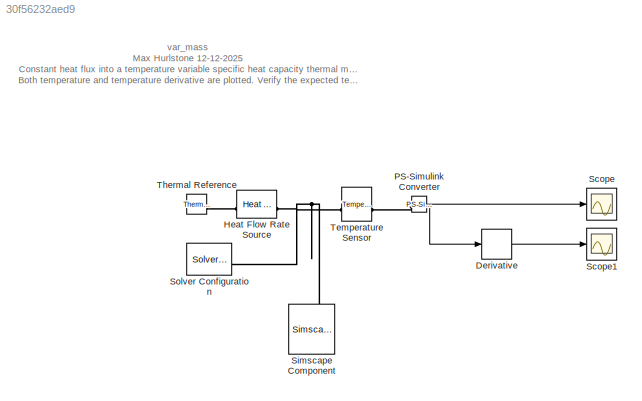
MODEL slx_30f56232aed9
KIND model
CONFIG AbsTol = auto
CONFIG EnableMultiTasking = off
CONFIG FixedStep = auto
CONFIG MaxStep = auto
CONFIG MinStep = auto
CONFIG RelTol = 1e-5
CONFIG SampleTimeConstraint = Unconstrained
CONFIG SolverName = VariableStepAuto
CONFIG StartTime = 0.0
CONFIG StopTime = 100
BLOCK [Derivative] Derivative
BLOCK [Reference] Heat Flow Rate Source  REF=fl_lib/Thermal/Thermal Sources/Heat Flow Rate
Source
  SourceBlock = fl_lib/Thermal/Thermal Sources/Heat Flow Rate\nSource
  SourceType = Heat Flow Rate\nSource
BLOCK [Reference] PS-Simulink Converter  REF=nesl_utility/PS-Simulink
Converter
  SourceBlock = nesl_utility/PS-Simulink\nConverter
  SourceType = PS-Simulink\nConverter
BLOCK [Scope] Scope
  ActiveDisplayYMaximum = 327.21620539047041
  ActiveDisplayYMinimum = 296.97597717883662
  Floating = off
  GraphicalSettings = {"Style":{"BackgroundColor":[0.12941176470588237,0.12941176470588237,0.12941176470588237],"AxesColor":[0.07058823529411765,0.07058823529411765,0.07058823529411765],"LabelsColor":[0.8509803921568627,0.8509803921568627,0.8509803921568627],"PreserveColors":false,"Visible":[true],"LineStyle":["-"],"LineWidth":[1.5],"BarWidth":[0.9],"LineColor":["auto"],"LineFaceAlpha":[1],"LineEdgeAlpha":[1],"Marker":...<+2057ch>
  MultipleDisplayCache = [{"MaxYLimMag":327.21620539047041,"MaxYLimReal":327.21620539047041,"MinYLimMag":296.97597717883662,"MinYLimReal":296.97597717883662,"PlotAsMagnitudePhase":false,"ShowGrid":true,"ShowLegend":false,"Title":"%<SignalLabel>","YLabel":""}]
  NumInputPorts = 1
  ScopeFrameLocation = window
  WasSavedAsWebScope = on
  WindowPosition = [2029.000000,505.000000,560.000000,420.000000,]
BLOCK [Scope] Scope1
  ActiveDisplayYMaximum = 0.27282411786053729
  ActiveDisplayYMinimum = -0.030313790873393025
  DataLoggingVariableName = ScopeData1
  Floating = off
  GraphicalSettings = {"Style":{"BackgroundColor":[0.12941176470588237,0.12941176470588237,0.12941176470588237],"AxesColor":[0.07058823529411765,0.07058823529411765,0.07058823529411765],"LabelsColor":[0.8509803921568627,0.8509803921568627,0.8509803921568627],"PreserveColors":false,"Visible":[true],"LineStyle":["-"],"LineWidth":[1.5],"BarWidth":[0.9],"LineColor":["auto"],"LineFaceAlpha":[1],"LineEdgeAlpha":[1],"Marker":...<+2311ch>
  MultipleDisplayCache = [{"MaxYLimMag":0.27282411786053729,"MaxYLimReal":0.27282411786053729,"MinYLimMag":0,"MinYLimReal":-0.030313790873393025,"PlotAsMagnitudePhase":false,"ShowGrid":true,"ShowLegend":false,"Title":"%<SignalLabel>","YLabel":""}]
  NumInputPorts = 1
  ScopeFrameLocation = window
  WasSavedAsWebScope = on
  WindowPosition = [1370.000000,454.000000,560.000000,420.000000,]
BLOCK [SimscapeComponentBlock] Simscape Component
  ClassName = var_mass
  ComponentPath = DLS_Simscape.Thermal.var_mass
  ComponentVariantNames = ["var_mass"]
  ComponentVariants = ["DLS_Simscape.Thermal.var_mass"]
  CopyFcn = simscape.sscblock.internal.componentBlockCallback(gcbh,'COPY')
  InternalSimscapePortConfiguration = {"Bottom":[],"Left":[{"id":"M","label":"","type":"foundation.thermal.thermal"}],"Right":[],"Top":[]}
  MaskType = Variable Cp Thermal Mass
  NameLocation = left
  PreCopyFcn = simscape.sscblock.internal.componentBlockCallback(gcbh,'PRECOPY')
  PreDeleteFcn = simscape.sscblock.internal.componentBlockCallback(gcbh,'PREDELETE')
  Q = 1000
  Q_nominal_specify = off
  Q_nominal_unit = W
  Q_nominal_value = 1000
  Q_priority = None
  Q_specify = off
  Q_unit = W
  SchemaVersion = 1
  SourceFile = DLS_Simscape.Thermal.var_mass
  T = 273
  T_nominal_specify = off
  T_nominal_unit = K
  T_nominal_value = 1
  T_priority = High
  T_specify = off
  T_unit = K
  mass = 1
  mass_conf = compiletime
  mass_min = 1e-6
  mass_min_conf = compiletime
  mass_min_unit = kg
  mass_unit = kg
  sp_heat_vec = [4210, 4330, 5750]
  sp_heat_vec_conf = compiletime
  sp_heat_vec_unit = J/(K*kg)
  tvec = [273, 433, 573]
  tvec_conf = compiletime
  tvec_unit = K
BLOCK [Reference] Solver Configuration  REF=nesl_utility/Solver
Configuration
  SourceBlock = nesl_utility/Solver\nConfiguration
  SourceType = Solver\nConfiguration
BLOCK [Reference] Temperature Sensor  REF=fl_lib/Thermal/Thermal Sensors/Temperature Sensor
  SourceBlock = fl_lib/Thermal/Thermal Sensors/Temperature Sensor
  SourceType = Temperature Sensor
BLOCK [Reference] Thermal Reference  REF=fl_lib/Thermal/Thermal Elements/Thermal Reference
  SourceBlock = fl_lib/Thermal/Thermal Elements/Thermal Reference
  SourceType = Thermal Reference
ANNOTATION (root): var_mass Max Hurlstone 12-12-2025 Constant heat flux into a temperature variable specific heat capacity thermal mass. Both temperature and temperature derivative are plotted. Verify the expected temperature derivative at a certain temperature, with one expected using a simple heat equation hand calculation.
LINE Derivative:1 -> Scope1:1
NET PS-Simulink Converter:1 -> Derivative:1, Scope:1
PNET net1: Heat Flow Rate Source:LConn1 -- Simscape Component:LConn1 -- Solver Configuration:RConn1 -- Temperature Sensor:LConn1
PLINE Heat Flow Rate Source:RConn1 -- Thermal Reference:LConn1
PLINE PS-Simulink Converter:LConn1 -- Temperature Sensor:RConn1
note: NET lines group one-source signal fan-out (src -> all destinations, sorted); 1:1 wires keep LINE; PNET lines group multi-terminal physical nets as a canonical sorted terminal list (undirected conserving connections); 2-terminal nets keep the pairwise PLINE form
